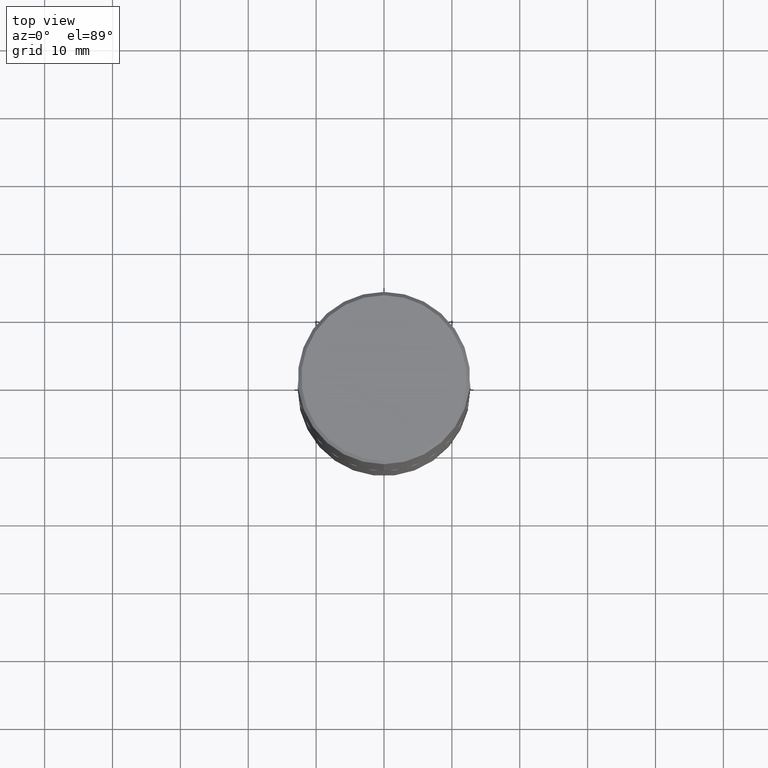
[diagram: clean part render]
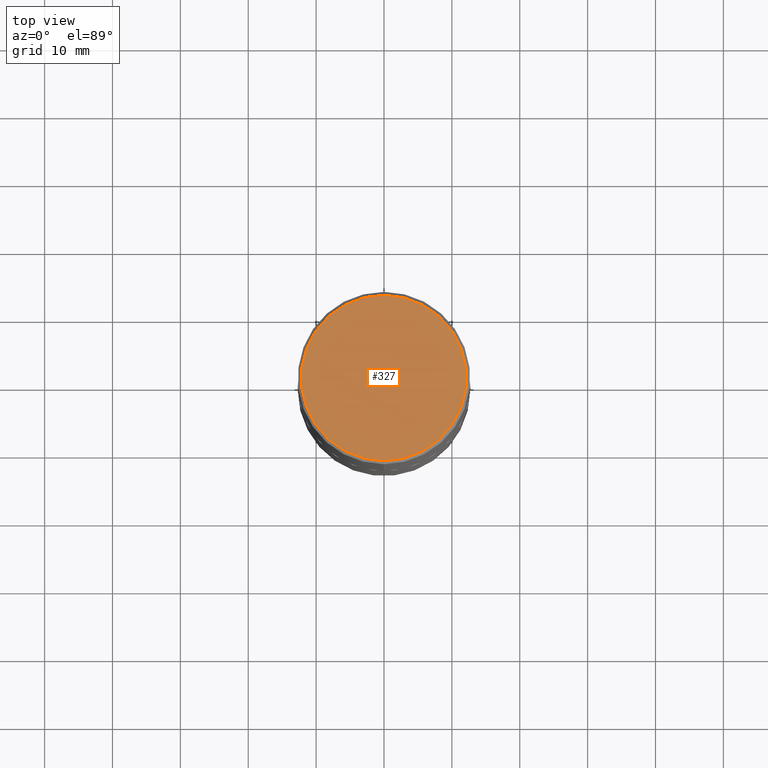
[diagram: same view with one face highlighted and labeled with its STEP entity id]
A machine part, top view. The second image highlights one B-rep face of the part: STEP entity #327.
In plain terms, the highlighted planar face has unit normal (0, -0, -1).
Its self-contained STEP definition (entity closure, byte-faithful):
#17 = ORIENTED_EDGE ( 'NONE', *, *, #296, .T. ) ;
#18 = FACE_OUTER_BOUND ( 'NONE', #206, .T. ) ;
#22 = AXIS2_PLACEMENT_3D ( 'NONE', #186, #409, #373 ) ;
#71 = ORIENTED_EDGE ( 'NONE', *, *, #171, .T. ) ;
#81 = CARTESIAN_POINT ( 'NONE',  ( -6.039126734728155395E-45, 8.614784925631203934E-31, 2.468446342868958109E-16 ) ) ;
#83 = CIRCLE ( 'NONE', #320, 0.4799999999999996492 ) ;
#85 = DIRECTION ( 'NONE',  ( -6.982962677686265922E-15, -1.000000000000000000, 3.489962401053711859E-15 ) ) ;
#95 = DIRECTION ( 'NONE',  ( -2.446529474774470711E-29, 3.489962401053712253E-15, 1.000000000000000000 ) ) ;
#97 = CARTESIAN_POINT ( 'NONE',  ( -6.039126734728155395E-45, 8.614784925631203934E-31, 2.468446342868958109E-16 ) ) ;
#102 = VERTEX_POINT ( 'NONE', #404 ) ;
#129 = VERTEX_POINT ( 'NONE', #286 ) ;
#152 = PLANE ( 'NONE',  #22 ) ;
#162 = AXIS2_PLACEMENT_3D ( 'NONE', #81, #95, #85 ) ;
#171 = EDGE_CURVE ( 'NONE', #129, #102, #83, .T. ) ;
#186 = CARTESIAN_POINT ( 'NONE',  ( 3.351822085289405181E-15, 0.4799999999999996492, -1.551759635362332947E-15 ) ) ;
#206 = EDGE_LOOP ( 'NONE', ( #71, #17 ) ) ;
#273 = DIRECTION ( 'NONE',  ( -6.982962677686265922E-15, -1.000000000000000000, 3.489962401053711859E-15 ) ) ;
#286 = CARTESIAN_POINT ( 'NONE',  ( 3.421651712066269268E-15, 0.4799999999999996492, -1.428337318218884943E-15 ) ) ;
#296 = EDGE_CURVE ( 'NONE', #102, #129, #382, .T. ) ;
#320 = AXIS2_PLACEMENT_3D ( 'NONE', #97, #399, #273 ) ;
#327 = ADVANCED_FACE ( 'NONE', ( #18 ), #152, .F. ) ;
#373 = DIRECTION ( 'NONE',  ( 6.982962677686265922E-15, 1.000000000000000000, -3.489962401053712253E-15 ) ) ;
#382 = CIRCLE ( 'NONE', #162, 0.4799999999999996492 ) ;
#399 = DIRECTION ( 'NONE',  ( -2.446529474774470711E-29, 3.489962401053712253E-15, 1.000000000000000000 ) ) ;
#404 = CARTESIAN_POINT ( 'NONE',  ( -3.361644018908048478E-15, -0.4799999999999996492, 1.922026586792676170E-15 ) ) ;
#409 = DIRECTION ( 'NONE',  ( 2.446529474774470431E-29, -3.489962401053712253E-15, -1.000000000000000000 ) ) ;